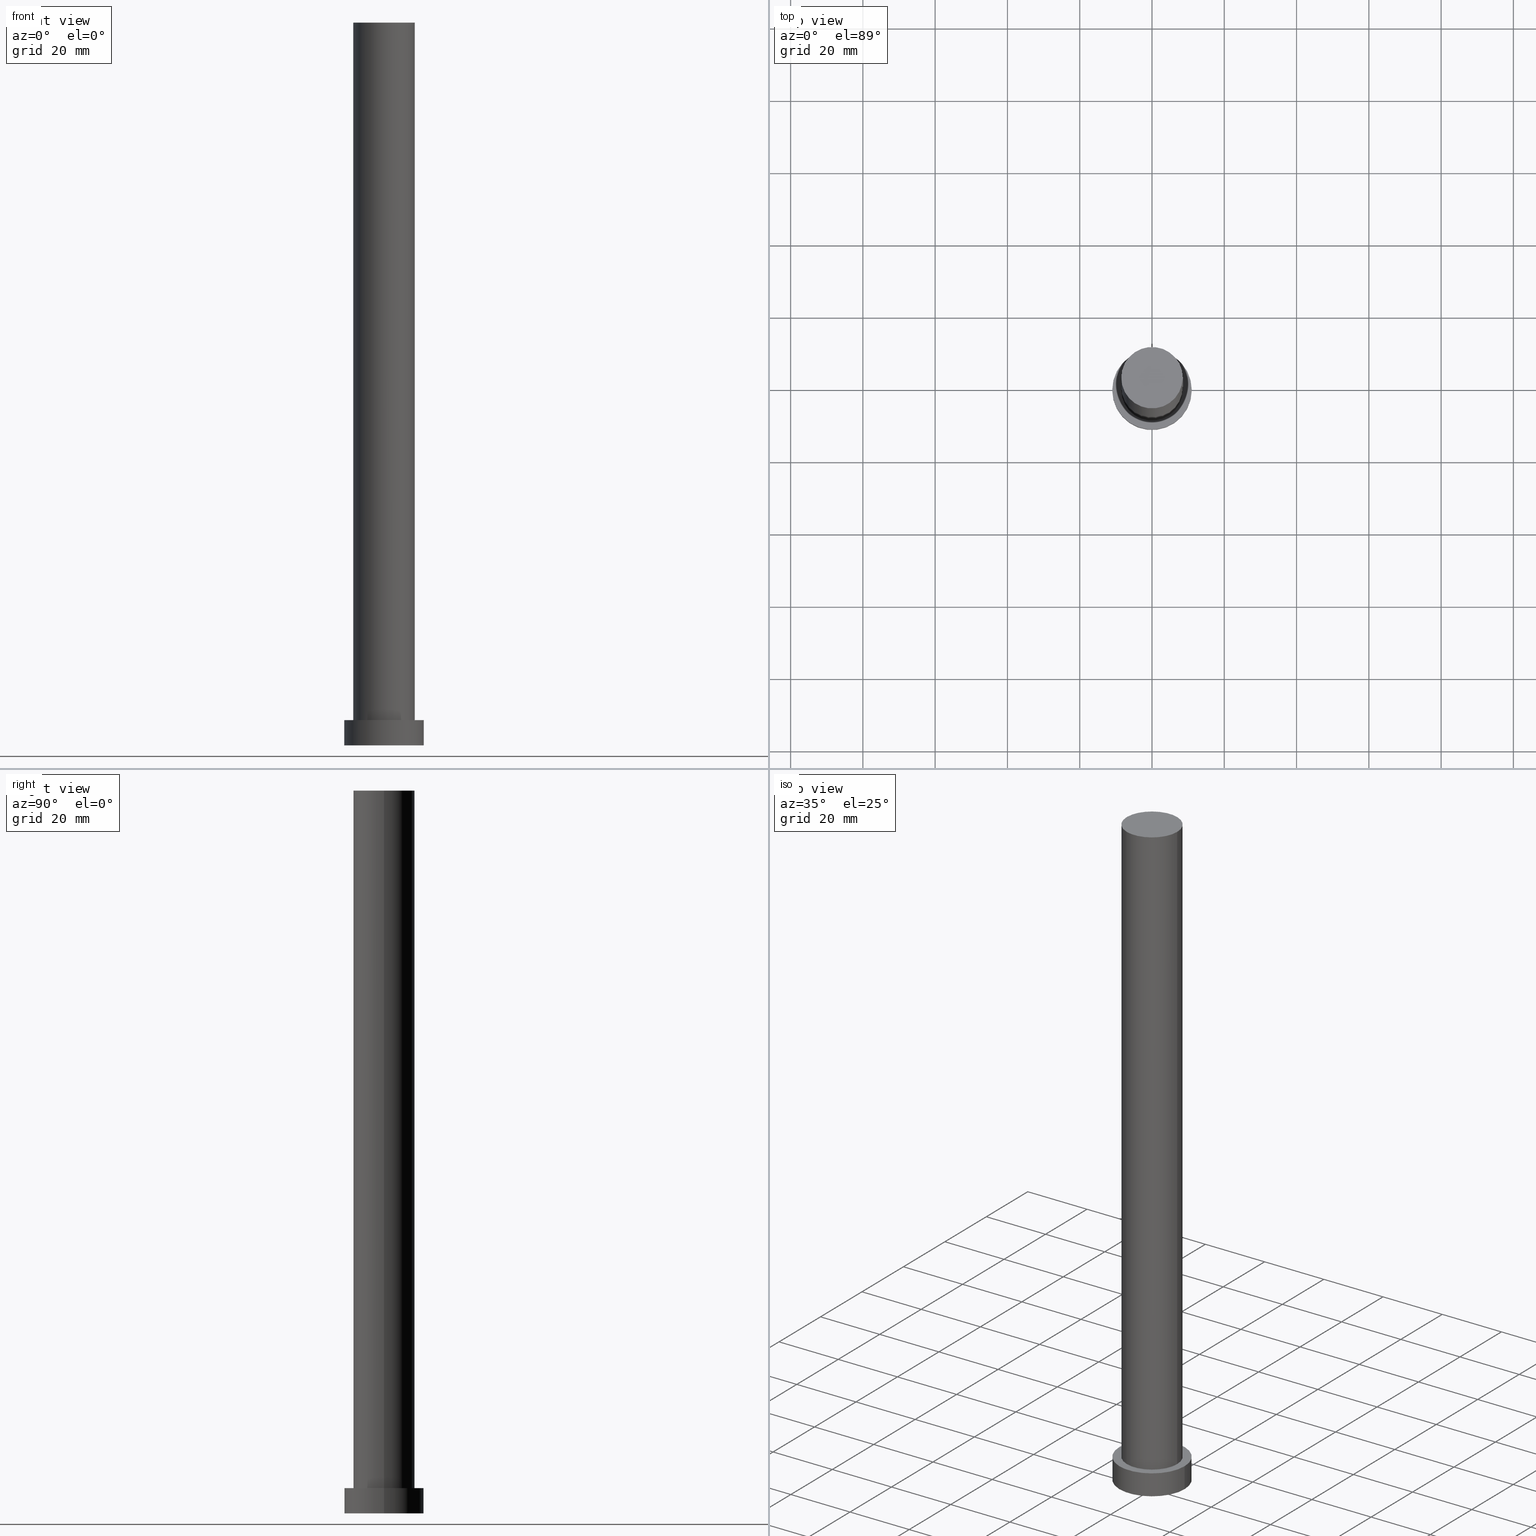
[diagram: canonical four-view strip — front | top / right | iso, engineering-drawing reading convention]
A machine part, canonical four-view strip (front | top / right | iso — engineering-drawing reading convention). The complete STEP part file that produces these views, byte-faithful:
ISO-10303-21;
HEADER;
FILE_DESCRIPTION (( 'STEP AP203' ),
    '1' );
FILE_NAME ('facb.STEP',
    '2023-02-13T08:46:59',
    ( '' ),
    ( '' ),
    'SwSTEP 2.0',
    'SolidWorks 2019',
    '' );
FILE_SCHEMA (( 'CONFIG_CONTROL_DESIGN' ));
ENDSEC;

DATA;
#1 = ORIENTED_EDGE ( 'NONE', *, *, #53, .T. ) ;
#2 = MECHANICAL_CONTEXT ( 'NONE', #187, 'mechanical' ) ;
#3 = CIRCLE ( 'NONE', #178, 8.500000000000000000 ) ;
#4 = ORIENTED_EDGE ( 'NONE', *, *, #33, .T. ) ;
#5 = PERSON_AND_ORGANIZATION ( #251, #110 ) ;
#6 = DIRECTION ( 'NONE',  ( 1.000000000000000000, 0.000000000000000000, 0.000000000000000000 ) ) ;
#7 = AXIS2_PLACEMENT_3D ( 'NONE', #89, #120, #103 ) ;
#8 = CARTESIAN_POINT ( 'NONE',  ( -8.500000000000000000, 0.000000000000000000, 7.000000000000000000 ) ) ;
#9 = CC_DESIGN_APPROVAL ( #112, ( #246 ) ) ;
#10 = APPROVAL_DATE_TIME ( #250, #112 ) ;
#11 = DIRECTION ( 'NONE',  ( 0.000000000000000000, 0.000000000000000000, 1.000000000000000000 ) ) ;
#12 = ORIENTED_EDGE ( 'NONE', *, *, #255, .F. ) ;
#13 = ADVANCED_FACE ( 'NONE', ( #166 ), #61, .T. ) ;
#14 = ORIENTED_EDGE ( 'NONE', *, *, #20, .T. ) ;
#15 = AXIS2_PLACEMENT_3D ( 'NONE', #242, #51, #159 ) ;
#16 = SHAPE_DEFINITION_REPRESENTATION ( #87, #203 ) ;
#17 = LINE ( 'NONE', #76, #202 ) ;
#18 = CC_DESIGN_APPROVAL ( #28, ( #105 ) ) ;
#19 = AXIS2_PLACEMENT_3D ( 'NONE', #150, #106, #191 ) ;
#20 = EDGE_CURVE ( 'NONE', #144, #82, #83, .T. ) ;
#21 = PRODUCT ( 'facb', 'facb', '', ( #2 ) ) ;
#22 = DIRECTION ( 'NONE',  ( -0.000000000000000000, -0.000000000000000000, -1.000000000000000000 ) ) ;
#23 = CALENDAR_DATE ( 2023, 13, 2 ) ;
#24 = VERTEX_POINT ( 'NONE', #91 ) ;
#25 = CIRCLE ( 'NONE', #163, 11.00000000000000000 ) ;
#26 = DATE_AND_TIME ( #229, #228 ) ;
#27 = CIRCLE ( 'NONE', #19, 11.00000000000000000 ) ;
#28 = APPROVAL ( #220, 'NEUR�EN�' ) ;
#29 = SECURITY_CLASSIFICATION_LEVEL ( 'unclassified' ) ;
#30 = ORIENTED_EDGE ( 'NONE', *, *, #200, .T. ) ;
#31 = ORIENTED_EDGE ( 'NONE', *, *, #218, .F. ) ;
#32 = LOCAL_TIME ( 9, 46, 59.00000000000000000, #204 ) ;
#33 = EDGE_CURVE ( 'NONE', #24, #96, #231, .T. ) ;
#34 = DIRECTION ( 'NONE',  ( -1.000000000000000000, 0.000000000000000000, 0.000000000000000000 ) ) ;
#35 = CIRCLE ( 'NONE', #148, 11.00000000000000000 ) ;
#36 = VERTEX_POINT ( 'NONE', #92 ) ;
#37 = APPROVAL_PERSON_ORGANIZATION ( #182, #112, #50 ) ;
#38 = DIRECTION ( 'NONE',  ( -1.000000000000000000, 0.000000000000000000, 0.000000000000000000 ) ) ;
#39 = CYLINDRICAL_SURFACE ( 'NONE', #107, 11.00000000000000000 ) ;
#40 = DIRECTION ( 'NONE',  ( 0.000000000000000000, 0.000000000000000000, 1.000000000000000000 ) ) ;
#41 = CIRCLE ( 'NONE', #216, 8.500000000000000000 ) ;
#42 = DIRECTION ( 'NONE',  ( -1.000000000000000000, 0.000000000000000000, 0.000000000000000000 ) ) ;
#43 = COORDINATED_UNIVERSAL_TIME_OFFSET ( 1, 0, .AHEAD. ) ;
#44 = ORIENTED_EDGE ( 'NONE', *, *, #49, .F. ) ;
#45 = PERSON_AND_ORGANIZATION_ROLE ( 'classification_officer' ) ;
#46 = ORIENTED_EDGE ( 'NONE', *, *, #255, .T. ) ;
#47 = PERSON_AND_ORGANIZATION ( #251, #110 ) ;
#48 = ORIENTED_EDGE ( 'NONE', *, *, #165, .F. ) ;
#49 = EDGE_CURVE ( 'NONE', #144, #36, #17, .T. ) ;
#50 = APPROVAL_ROLE ( '' ) ;
#51 = DIRECTION ( 'NONE',  ( 0.000000000000000000, 0.000000000000000000, 1.000000000000000000 ) ) ;
#52 = CARTESIAN_POINT ( 'NONE',  ( 0.000000000000000000, 0.000000000000000000, 0.000000000000000000 ) ) ;
#53 = EDGE_CURVE ( 'NONE', #96, #73, #129, .T. ) ;
#54 =( NAMED_UNIT ( * ) PLANE_ANGLE_UNIT ( ) SI_UNIT ( $, .RADIAN. ) );
#55 = PRODUCT_RELATED_PRODUCT_CATEGORY ( 'detail', '', ( #21 ) ) ;
#56 = CC_DESIGN_APPROVAL ( #127, ( #209 ) ) ;
#57 = CARTESIAN_POINT ( 'NONE',  ( 0.000000000000000000, 0.000000000000000000, 7.000000000000000000 ) ) ;
#58 = CC_DESIGN_PERSON_AND_ORGANIZATION_ASSIGNMENT ( #47, #68, ( #105 ) ) ;
#59 = DIRECTION ( 'NONE',  ( -0.000000000000000000, -0.000000000000000000, -1.000000000000000000 ) ) ;
#60 = CARTESIAN_POINT ( 'NONE',  ( 11.00000000000000000, 1.347111479062088405E-15, 7.000000000000000000 ) ) ;
#61 = CYLINDRICAL_SURFACE ( 'NONE', #122, 8.500000000000000000 ) ;
#62 = APPLICATION_CONTEXT ( 'configuration controlled 3d designs of mechanical parts and assemblies' ) ;
#63 = CARTESIAN_POINT ( 'NONE',  ( 0.000000000000000000, 0.000000000000000000, 200.0000000000000000 ) ) ;
#64 = APPROVAL_PERSON_ORGANIZATION ( #156, #127, #114 ) ;
#65 = PERSON_AND_ORGANIZATION ( #251, #110 ) ;
#66 = APPROVAL_DATE_TIME ( #180, #28 ) ;
#67 = EDGE_CURVE ( 'NONE', #73, #160, #27, .T. ) ;
#68 = PERSON_AND_ORGANIZATION_ROLE ( 'creator' ) ;
#69 = APPLICATION_PROTOCOL_DEFINITION ( 'international standard', 'config_control_design', 1994, #187 ) ;
#70 = LINE ( 'NONE', #142, #147 ) ;
#71 = EDGE_LOOP ( 'NONE', ( #113, #1, #126, #12 ) ) ;
#72 =( NAMED_UNIT ( * ) SI_UNIT ( $, .STERADIAN. ) SOLID_ANGLE_UNIT ( ) );
#73 = VERTEX_POINT ( 'NONE', #93 ) ;
#74 = AXIS2_PLACEMENT_3D ( 'NONE', #233, #210, #213 ) ;
#75 = ADVANCED_FACE ( 'NONE', ( #170 ), #77, .T. ) ;
#76 = CARTESIAN_POINT ( 'NONE',  ( 8.500000000000000000, 1.040949779275250140E-15, 200.0000000000000000 ) ) ;
#77 = CYLINDRICAL_SURFACE ( 'NONE', #190, 8.500000000000000000 ) ;
#78 = CARTESIAN_POINT ( 'NONE',  ( 0.000000000000000000, 0.000000000000000000, 0.000000000000000000 ) ) ;
#79 = PLANE ( 'NONE',  #146 ) ;
#80 = FACE_BOUND ( 'NONE', #157, .T. ) ;
#81 = CALENDAR_DATE ( 2023, 13, 2 ) ;
#82 = VERTEX_POINT ( 'NONE', #219 ) ;
#83 = CIRCLE ( 'NONE', #234, 8.500000000000000000 ) ;
#84 = ORIENTED_EDGE ( 'NONE', *, *, #165, .T. ) ;
#85 = DATE_TIME_ROLE ( 'creation_date' ) ;
#86 = EDGE_LOOP ( 'NONE', ( #205, #177, #46, #221 ) ) ;
#87 = PRODUCT_DEFINITION_SHAPE ( 'NONE', 'NONE',  #105 ) ;
#88 = COORDINATED_UNIVERSAL_TIME_OFFSET ( 1, 0, .AHEAD. ) ;
#89 = CARTESIAN_POINT ( 'NONE',  ( 0.000000000000000000, 0.000000000000000000, 200.0000000000000000 ) ) ;
#90 = ORIENTED_EDGE ( 'NONE', *, *, #152, .T. ) ;
#91 = CARTESIAN_POINT ( 'NONE',  ( -11.00000000000000000, 0.000000000000000000, 7.000000000000000000 ) ) ;
#92 = CARTESIAN_POINT ( 'NONE',  ( 8.500000000000000000, 1.040949779275250140E-15, 7.000000000000000000 ) ) ;
#93 = CARTESIAN_POINT ( 'NONE',  ( 11.00000000000000000, 1.347111479062088405E-15, 0.000000000000000000 ) ) ;
#94 = FACE_OUTER_BOUND ( 'NONE', #111, .T. ) ;
#95 = CARTESIAN_POINT ( 'NONE',  ( -8.500000000000000000, 0.000000000000000000, 200.0000000000000000 ) ) ;
#96 = VERTEX_POINT ( 'NONE', #60 ) ;
#97 = ORIENTED_EDGE ( 'NONE', *, *, #232, .F. ) ;
#98 = COORDINATED_UNIVERSAL_TIME_OFFSET ( 1, 0, .AHEAD. ) ;
#99 = ORIENTED_EDGE ( 'NONE', *, *, #152, .F. ) ;
#100 = CC_DESIGN_PERSON_AND_ORGANIZATION_ASSIGNMENT ( #5, #45, ( #246 ) ) ;
#101 = CARTESIAN_POINT ( 'NONE',  ( 0.000000000000000000, 0.000000000000000000, 7.000000000000000000 ) ) ;
#102 = ORIENTED_EDGE ( 'NONE', *, *, #20, .F. ) ;
#103 = DIRECTION ( 'NONE',  ( 1.000000000000000000, 0.000000000000000000, 0.000000000000000000 ) ) ;
#104 = MANIFOLD_SOLID_BREP ( 'P�idat vysunut�m3', #118 ) ;
#105 = PRODUCT_DEFINITION ( 'NEZN�M�', '', #209, #174 ) ;
#106 = DIRECTION ( 'NONE',  ( 0.000000000000000000, 0.000000000000000000, 1.000000000000000000 ) ) ;
#107 = AXIS2_PLACEMENT_3D ( 'NONE', #214, #254, #42 ) ;
#108 = LINE ( 'NONE', #95, #168 ) ;
#109 = UNCERTAINTY_MEASURE_WITH_UNIT (LENGTH_MEASURE( 1.000000000000000082E-05 ), #139, 'distance_accuracy_value', 'NONE');
#110 = ORGANIZATION ( 'NEUR�EN�', 'NEUR�EN�', '' ) ;
#111 = EDGE_LOOP ( 'NONE', ( #31, #236 ) ) ;
#112 = APPROVAL ( #226, 'NEUR�EN�' ) ;
#113 = ORIENTED_EDGE ( 'NONE', *, *, #200, .F. ) ;
#114 = APPROVAL_ROLE ( '' ) ;
#115 = AXIS2_PLACEMENT_3D ( 'NONE', #212, #189, #252 ) ;
#116 = EDGE_LOOP ( 'NONE', ( #102, #230, #90, #48 ) ) ;
#117 = CC_DESIGN_PERSON_AND_ORGANIZATION_ASSIGNMENT ( #201, #222, ( #209 ) ) ;
#118 = CLOSED_SHELL ( 'NONE', ( #75, #188, #125, #238, #161, #13, #179 ) ) ;
#119 = APPLICATION_PROTOCOL_DEFINITION ( 'international standard', 'config_control_design', 1994, #62 ) ;
#120 = DIRECTION ( 'NONE',  ( 0.000000000000000000, 0.000000000000000000, 1.000000000000000000 ) ) ;
#121 = DIRECTION ( 'NONE',  ( 1.000000000000000000, 0.000000000000000000, 0.000000000000000000 ) ) ;
#122 = AXIS2_PLACEMENT_3D ( 'NONE', #253, #247, #38 ) ;
#123 = DIRECTION ( 'NONE',  ( 0.000000000000000000, 0.000000000000000000, 1.000000000000000000 ) ) ;
#124 = EDGE_LOOP ( 'NONE', ( #44, #97, #84, #243 ) ) ;
#125 = ADVANCED_FACE ( 'NONE', ( #211 ), #39, .T. ) ;
#126 = ORIENTED_EDGE ( 'NONE', *, *, #67, .T. ) ;
#127 = APPROVAL ( #135, 'NEUR�EN�' ) ;
#128 = DIRECTION ( 'NONE',  ( -0.000000000000000000, -0.000000000000000000, -1.000000000000000000 ) ) ;
#129 = LINE ( 'NONE', #169, #131 ) ;
#130 = DIRECTION ( 'NONE',  ( -0.000000000000000000, -0.000000000000000000, -1.000000000000000000 ) ) ;
#131 = VECTOR ( 'NONE', #128, 1000.000000000000000 ) ;
#132 = CARTESIAN_POINT ( 'NONE',  ( 0.000000000000000000, 0.000000000000000000, 7.000000000000000000 ) ) ;
#133 = EDGE_CURVE ( 'NONE', #198, #36, #41, .T. ) ;
#134 = PERSON_AND_ORGANIZATION ( #251, #110 ) ;
#135 = APPROVAL_STATUS ( 'not_yet_approved' ) ;
#136 = PERSON_AND_ORGANIZATION_ROLE ( 'design_owner' ) ;
#137 = CC_DESIGN_PERSON_AND_ORGANIZATION_ASSIGNMENT ( #155, #239, ( #209 ) ) ;
#138 = DATE_TIME_ROLE ( 'classification_date' ) ;
#139 =( LENGTH_UNIT ( ) NAMED_UNIT ( * ) SI_UNIT ( .MILLI., .METRE. ) );
#140 = EDGE_LOOP ( 'NONE', ( #4, #30 ) ) ;
#141 = COORDINATED_UNIVERSAL_TIME_OFFSET ( 1, 0, .AHEAD. ) ;
#142 = CARTESIAN_POINT ( 'NONE',  ( -11.00000000000000000, 0.000000000000000000, 7.000000000000000000 ) ) ;
#143 = ORIENTED_EDGE ( 'NONE', *, *, #133, .F. ) ;
#144 = VERTEX_POINT ( 'NONE', #193 ) ;
#145 = DIRECTION ( 'NONE',  ( -0.000000000000000000, -0.000000000000000000, -1.000000000000000000 ) ) ;
#146 = AXIS2_PLACEMENT_3D ( 'NONE', #78, #196, #217 ) ;
#147 = VECTOR ( 'NONE', #245, 1000.000000000000000 ) ;
#148 = AXIS2_PLACEMENT_3D ( 'NONE', #57, #123, #183 ) ;
#149 = PLANE ( 'NONE',  #115 ) ;
#150 = CARTESIAN_POINT ( 'NONE',  ( 0.000000000000000000, 0.000000000000000000, 0.000000000000000000 ) ) ;
#151 = DIRECTION ( 'NONE',  ( 1.000000000000000000, 0.000000000000000000, 0.000000000000000000 ) ) ;
#152 = EDGE_CURVE ( 'NONE', #36, #198, #3, .T. ) ;
#153 = DIRECTION ( 'NONE',  ( -1.000000000000000000, 0.000000000000000000, 0.000000000000000000 ) ) ;
#154 = DIRECTION ( 'NONE',  ( 1.000000000000000000, 0.000000000000000000, 0.000000000000000000 ) ) ;
#155 = PERSON_AND_ORGANIZATION ( #251, #110 ) ;
#156 = PERSON_AND_ORGANIZATION ( #251, #110 ) ;
#157 = EDGE_LOOP ( 'NONE', ( #143, #99 ) ) ;
#158 = CALENDAR_DATE ( 2023, 13, 2 ) ;
#159 = DIRECTION ( 'NONE',  ( 1.000000000000000000, 0.000000000000000000, -0.000000000000000000 ) ) ;
#160 = VERTEX_POINT ( 'NONE', #215 ) ;
#161 = ADVANCED_FACE ( 'NONE', ( #94 ), #79, .F. ) ;
#162 = FACE_OUTER_BOUND ( 'NONE', #140, .T. ) ;
#163 = AXIS2_PLACEMENT_3D ( 'NONE', #244, #11, #6 ) ;
#164 = ORIENTED_EDGE ( 'NONE', *, *, #232, .T. ) ;
#165 = EDGE_CURVE ( 'NONE', #82, #198, #108, .T. ) ;
#166 = FACE_OUTER_BOUND ( 'NONE', #124, .T. ) ;
#167 = CIRCLE ( 'NONE', #7, 8.500000000000000000 ) ;
#168 = VECTOR ( 'NONE', #22, 1000.000000000000000 ) ;
#169 = CARTESIAN_POINT ( 'NONE',  ( 11.00000000000000000, 1.347111479062088405E-15, 7.000000000000000000 ) ) ;
#170 = FACE_OUTER_BOUND ( 'NONE', #116, .T. ) ;
#171 = DIRECTION ( 'NONE',  ( 0.000000000000000000, 0.000000000000000000, 1.000000000000000000 ) ) ;
#172 = DIRECTION ( 'NONE',  ( 0.000000000000000000, 0.000000000000000000, 1.000000000000000000 ) ) ;
#173 = CC_DESIGN_SECURITY_CLASSIFICATION ( #246, ( #209 ) ) ;
#174 = DESIGN_CONTEXT ( 'detailed design', #62, 'design' ) ;
#175 = FACE_OUTER_BOUND ( 'NONE', #181, .T. ) ;
#176 = DATE_AND_TIME ( #158, #32 ) ;
#177 = ORIENTED_EDGE ( 'NONE', *, *, #33, .F. ) ;
#178 = AXIS2_PLACEMENT_3D ( 'NONE', #132, #171, #154 ) ;
#179 = ADVANCED_FACE ( 'NONE', ( #175 ), #149, .T. ) ;
#180 = DATE_AND_TIME ( #81, #237 ) ;
#181 = EDGE_LOOP ( 'NONE', ( #164, #14 ) ) ;
#182 = PERSON_AND_ORGANIZATION ( #251, #110 ) ;
#183 = DIRECTION ( 'NONE',  ( 1.000000000000000000, 0.000000000000000000, 0.000000000000000000 ) ) ;
#184 = PLANE ( 'NONE',  #15 ) ;
#185 = CC_DESIGN_DATE_AND_TIME_ASSIGNMENT ( #176, #85, ( #105 ) ) ;
#186 = CARTESIAN_POINT ( 'NONE',  ( 0.000000000000000000, 0.000000000000000000, 200.0000000000000000 ) ) ;
#187 = APPLICATION_CONTEXT ( 'configuration controlled 3d designs of mechanical parts and assemblies' ) ;
#188 = ADVANCED_FACE ( 'NONE', ( #208 ), #227, .T. ) ;
#189 = DIRECTION ( 'NONE',  ( 0.000000000000000000, 0.000000000000000000, 1.000000000000000000 ) ) ;
#190 = AXIS2_PLACEMENT_3D ( 'NONE', #63, #130, #153 ) ;
#191 = DIRECTION ( 'NONE',  ( 1.000000000000000000, 0.000000000000000000, 0.000000000000000000 ) ) ;
#192 = CC_DESIGN_DATE_AND_TIME_ASSIGNMENT ( #26, #138, ( #246 ) ) ;
#193 = CARTESIAN_POINT ( 'NONE',  ( 8.500000000000000000, 1.040949779275250140E-15, 200.0000000000000000 ) ) ;
#194 = CARTESIAN_POINT ( 'NONE',  ( 0.000000000000000000, 0.000000000000000000, 7.000000000000000000 ) ) ;
#195 = AXIS2_PLACEMENT_3D ( 'NONE', #52, #240, #121 ) ;
#196 = DIRECTION ( 'NONE',  ( 0.000000000000000000, 0.000000000000000000, 1.000000000000000000 ) ) ;
#197 = CALENDAR_DATE ( 2023, 13, 2 ) ;
#198 = VERTEX_POINT ( 'NONE', #8 ) ;
#199 = DATE_AND_TIME ( #197, #249 ) ;
#200 = EDGE_CURVE ( 'NONE', #96, #24, #35, .T. ) ;
#201 = PERSON_AND_ORGANIZATION ( #251, #110 ) ;
#202 = VECTOR ( 'NONE', #59, 1000.000000000000000 ) ;
#203 = ADVANCED_BREP_SHAPE_REPRESENTATION ( 'facb', ( #104, #195 ), #206 ) ;
#204 = COORDINATED_UNIVERSAL_TIME_OFFSET ( 1, 0, .AHEAD. ) ;
#205 = ORIENTED_EDGE ( 'NONE', *, *, #53, .F. ) ;
#206 =( GEOMETRIC_REPRESENTATION_CONTEXT ( 3 ) GLOBAL_UNCERTAINTY_ASSIGNED_CONTEXT ( ( #109 ) ) GLOBAL_UNIT_ASSIGNED_CONTEXT ( ( #139, #54, #72 ) ) REPRESENTATION_CONTEXT ( 'NONE', 'WORKASPACE' ) );
#207 = LOCAL_TIME ( 9, 46, 59.00000000000000000, #88 ) ;
#208 = FACE_OUTER_BOUND ( 'NONE', #71, .T. ) ;
#209 = PRODUCT_DEFINITION_FORMATION_WITH_SPECIFIED_SOURCE ( 'LIBOVOLN�', '', #21, .NOT_KNOWN. ) ;
#210 = DIRECTION ( 'NONE',  ( 0.000000000000000000, 0.000000000000000000, 1.000000000000000000 ) ) ;
#211 = FACE_OUTER_BOUND ( 'NONE', #86, .T. ) ;
#212 = CARTESIAN_POINT ( 'NONE',  ( 0.000000000000000000, 0.000000000000000000, 200.0000000000000000 ) ) ;
#213 = DIRECTION ( 'NONE',  ( 1.000000000000000000, 0.000000000000000000, 0.000000000000000000 ) ) ;
#214 = CARTESIAN_POINT ( 'NONE',  ( 0.000000000000000000, 0.000000000000000000, 7.000000000000000000 ) ) ;
#215 = CARTESIAN_POINT ( 'NONE',  ( -11.00000000000000000, 0.000000000000000000, 0.000000000000000000 ) ) ;
#216 = AXIS2_PLACEMENT_3D ( 'NONE', #194, #172, #235 ) ;
#217 = DIRECTION ( 'NONE',  ( 1.000000000000000000, 0.000000000000000000, -0.000000000000000000 ) ) ;
#218 = EDGE_CURVE ( 'NONE', #160, #73, #25, .T. ) ;
#219 = CARTESIAN_POINT ( 'NONE',  ( -8.500000000000000000, 0.000000000000000000, 200.0000000000000000 ) ) ;
#220 = APPROVAL_STATUS ( 'not_yet_approved' ) ;
#221 = ORIENTED_EDGE ( 'NONE', *, *, #218, .T. ) ;
#222 = PERSON_AND_ORGANIZATION_ROLE ( 'design_supplier' ) ;
#223 = CC_DESIGN_PERSON_AND_ORGANIZATION_ASSIGNMENT ( #65, #136, ( #21 ) ) ;
#224 = APPROVAL_ROLE ( '' ) ;
#225 = AXIS2_PLACEMENT_3D ( 'NONE', #101, #145, #34 ) ;
#226 = APPROVAL_STATUS ( 'not_yet_approved' ) ;
#227 = CYLINDRICAL_SURFACE ( 'NONE', #225, 11.00000000000000000 ) ;
#228 = LOCAL_TIME ( 9, 46, 59.00000000000000000, #141 ) ;
#229 = CALENDAR_DATE ( 2023, 13, 2 ) ;
#230 = ORIENTED_EDGE ( 'NONE', *, *, #49, .T. ) ;
#231 = CIRCLE ( 'NONE', #74, 11.00000000000000000 ) ;
#232 = EDGE_CURVE ( 'NONE', #82, #144, #167, .T. ) ;
#233 = CARTESIAN_POINT ( 'NONE',  ( 0.000000000000000000, 0.000000000000000000, 7.000000000000000000 ) ) ;
#234 = AXIS2_PLACEMENT_3D ( 'NONE', #186, #40, #151 ) ;
#235 = DIRECTION ( 'NONE',  ( 1.000000000000000000, 0.000000000000000000, 0.000000000000000000 ) ) ;
#236 = ORIENTED_EDGE ( 'NONE', *, *, #67, .F. ) ;
#237 = LOCAL_TIME ( 9, 46, 59.00000000000000000, #43 ) ;
#238 = ADVANCED_FACE ( 'NONE', ( #80, #162 ), #184, .T. ) ;
#239 = PERSON_AND_ORGANIZATION_ROLE ( 'creator' ) ;
#240 = DIRECTION ( 'NONE',  ( 0.000000000000000000, 0.000000000000000000, 1.000000000000000000 ) ) ;
#241 = APPROVAL_DATE_TIME ( #199, #127 ) ;
#242 = CARTESIAN_POINT ( 'NONE',  ( 0.000000000000000000, 0.000000000000000000, 7.000000000000000000 ) ) ;
#243 = ORIENTED_EDGE ( 'NONE', *, *, #133, .T. ) ;
#244 = CARTESIAN_POINT ( 'NONE',  ( 0.000000000000000000, 0.000000000000000000, 0.000000000000000000 ) ) ;
#245 = DIRECTION ( 'NONE',  ( -0.000000000000000000, -0.000000000000000000, -1.000000000000000000 ) ) ;
#246 = SECURITY_CLASSIFICATION ( '', '', #29 ) ;
#247 = DIRECTION ( 'NONE',  ( -0.000000000000000000, -0.000000000000000000, -1.000000000000000000 ) ) ;
#248 = APPROVAL_PERSON_ORGANIZATION ( #134, #28, #224 ) ;
#249 = LOCAL_TIME ( 9, 46, 59.00000000000000000, #98 ) ;
#250 = DATE_AND_TIME ( #23, #207 ) ;
#251 = PERSON ( 'NEUR�EN�', 'NEUR�EN�', 'NEUR�EN�', ('NEUR�EN�'), ('NEUR�EN�'), ('NEUR�EN�') ) ;
#252 = DIRECTION ( 'NONE',  ( 1.000000000000000000, 0.000000000000000000, -0.000000000000000000 ) ) ;
#253 = CARTESIAN_POINT ( 'NONE',  ( 0.000000000000000000, 0.000000000000000000, 200.0000000000000000 ) ) ;
#254 = DIRECTION ( 'NONE',  ( -0.000000000000000000, -0.000000000000000000, -1.000000000000000000 ) ) ;
#255 = EDGE_CURVE ( 'NONE', #24, #160, #70, .T. ) ;
ENDSEC;
END-ISO-10303-21;
